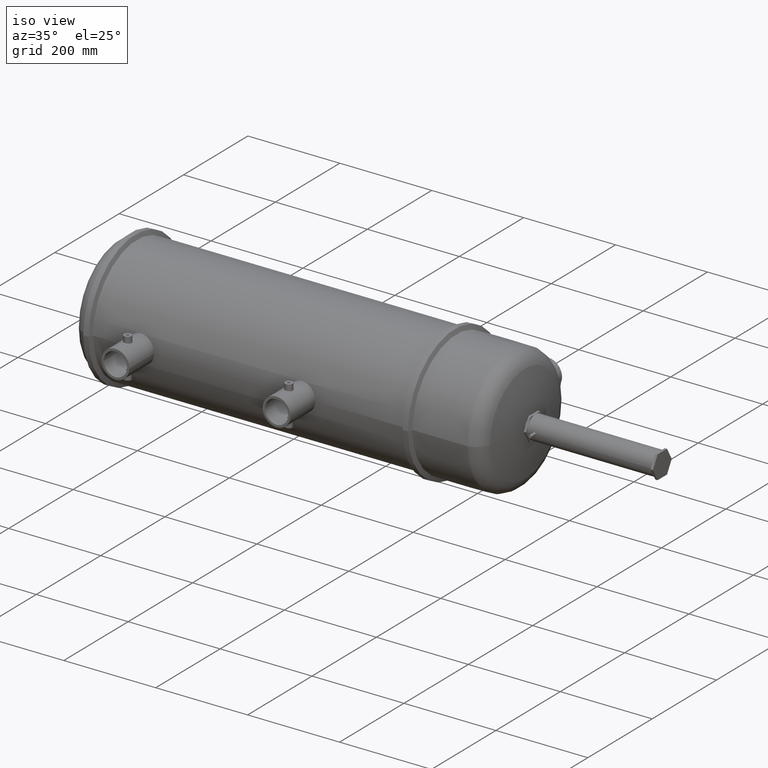
[diagram: clean part render]
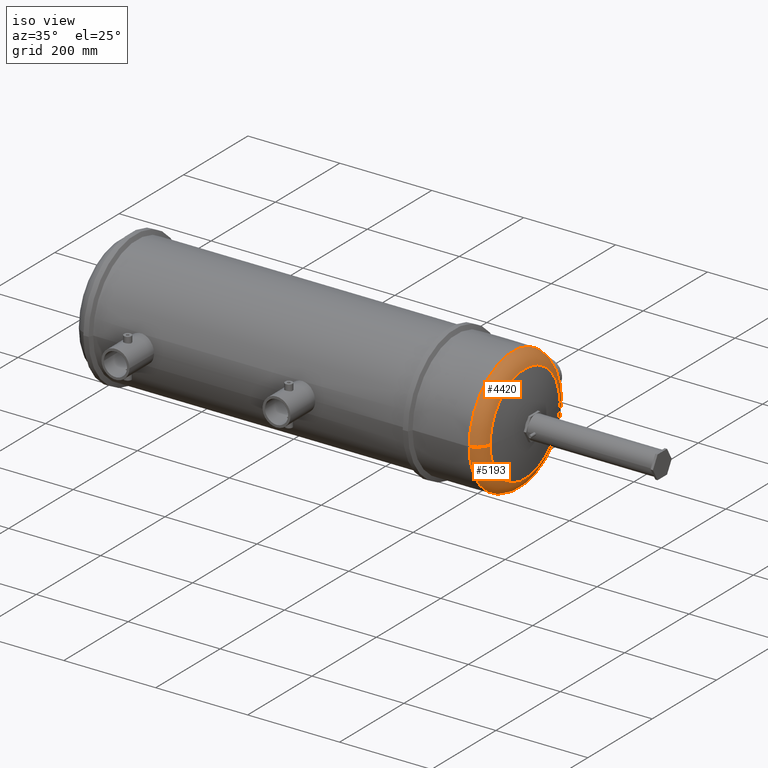
[diagram: same view with one multi-face feature highlighted, each face labeled with its STEP entity id]
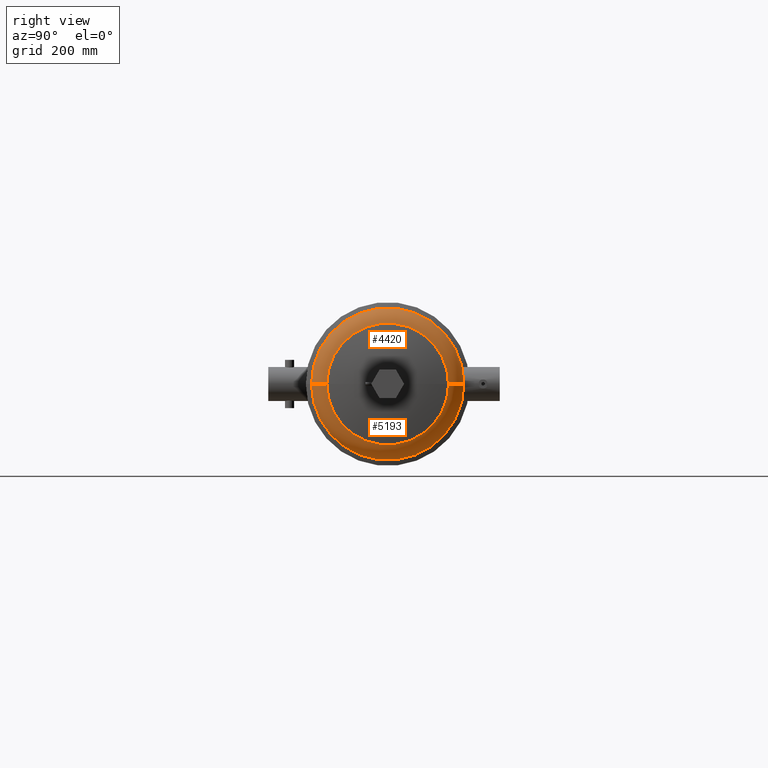
[diagram: same view with one multi-face feature highlighted, each face labeled with its STEP entity id]
A machine part, iso view. The highlighted faces form ONE feature: a constant-radius fillet chain: 2 tangent blend faces with common blend radius 36.1885 mm. The faces share edges in the B-rep.
A second angle (right view) of the same feature is appended — it is thin or edge-on in the first view.
Their STEP definitions:
[1] entity #5193 (Torus):
#386 = ORIENTED_EDGE ( 'NONE', *, *, #5635, .T. ) ;
#621 = CARTESIAN_POINT ( 'NONE',  ( 34.51215737964329100, 0.003374638380548222000, 0.0000000000000000000 ) ) ;
#673 = DIRECTION ( 'NONE',  ( 0.0000000000000000000, -0.0000000000000000000, -1.000000000000000000 ) ) ;
#1340 = FACE_OUTER_BOUND ( 'NONE', #2945, .T. ) ;
#1539 = DIRECTION ( 'NONE',  ( 0.0000000000000000000, -1.000000000000000000, 0.0000000000000000000 ) ) ;
#1694 = CIRCLE ( 'NONE', #3658, 1.424746040561524900 ) ;
#1752 = AXIS2_PLACEMENT_3D ( 'NONE', #2094, #4376, #5259 ) ;
#1851 = VERTEX_POINT ( 'NONE', #3456 ) ;
#2094 = CARTESIAN_POINT ( 'NONE',  ( 35.55526549689713500, 0.003374638380548246200, 0.0000000000000000000 ) ) ;
#2262 = CARTESIAN_POINT ( 'NONE',  ( 35.55526549689712800, 4.275103033478896600, 5.231358505884052500E-016 ) ) ;
#2321 = CARTESIAN_POINT ( 'NONE',  ( 34.51215737964329100, -5.345444288855457400, 0.0000000000000000000 ) ) ;
#2459 = ORIENTED_EDGE ( 'NONE', *, *, #2979, .T. ) ;
#2945 = EDGE_LOOP ( 'NONE', ( #4637, #2459, #386, #3238 ) ) ;
#2979 = EDGE_CURVE ( 'NONE', #4826, #1851, #3058, .T. ) ;
#2981 = CIRCLE ( 'NONE', #3009, 1.424746040561524900 ) ;
#3009 = AXIS2_PLACEMENT_3D ( 'NONE', #5850, #3142, #4081 ) ;
#3058 = CIRCLE ( 'NONE', #1752, 4.271728395098345600 ) ;
#3142 = DIRECTION ( 'NONE',  ( -1.380747427220608200E-036, -1.224646799147353200E-016, 1.000000000000000000 ) ) ;
#3238 = ORIENTED_EDGE ( 'NONE', *, *, #3636, .T. ) ;
#3386 = CARTESIAN_POINT ( 'NONE',  ( 34.16339746353055100, -3.964043622499467300, 0.0000000000000000000 ) ) ;
#3456 = CARTESIAN_POINT ( 'NONE',  ( 35.55526549689712800, -4.268353756717799800, 0.0000000000000000000 ) ) ;
#3636 = EDGE_CURVE ( 'NONE', #4489, #3660, #5463, .T. ) ;
#3658 = AXIS2_PLACEMENT_3D ( 'NONE', #3386, #673, #3870 ) ;
#3660 = VERTEX_POINT ( 'NONE', #3838 ) ;
#3838 = CARTESIAN_POINT ( 'NONE',  ( 34.51215737964329100, 5.352193565616555100, 6.550413978458354700E-016 ) ) ;
#3870 = DIRECTION ( 'NONE',  ( -1.000000000000000000, 0.0000000000000000000, 0.0000000000000000000 ) ) ;
#4039 = CARTESIAN_POINT ( 'NONE',  ( 34.16339746353055100, 0.003374638380548222000, 0.0000000000000000000 ) ) ;
#4081 = DIRECTION ( 'NONE',  ( 0.0000000000000000000, -1.000000000000000000, -1.224646799147352700E-016 ) ) ;
#4376 = DIRECTION ( 'NONE',  ( -1.000000000000000000, 1.127465836012422800E-020, -0.0000000000000000000 ) ) ;
#4489 = VERTEX_POINT ( 'NONE', #2321 ) ;
#4490 = DIRECTION ( 'NONE',  ( -1.127465836012422800E-020, -1.000000000000000000, 0.0000000000000000000 ) ) ;
#4586 = TOROIDAL_SURFACE ( 'NONE', #5785, 3.967418260880015300, 1.424746040561524900 ) ;
#4637 = ORIENTED_EDGE ( 'NONE', *, *, #4791, .F. ) ;
#4671 = DIRECTION ( 'NONE',  ( 1.000000000000000000, -1.127465836012422800E-020, 0.0000000000000000000 ) ) ;
#4791 = EDGE_CURVE ( 'NONE', #4826, #3660, #2981, .T. ) ;
#4826 = VERTEX_POINT ( 'NONE', #2262 ) ;
#5193 = ADVANCED_FACE ( 'NONE', ( #1340 ), #4586, .T. ) ;
#5259 = DIRECTION ( 'NONE',  ( 0.0000000000000000000, -1.000000000000000000, 0.0000000000000000000 ) ) ;
#5432 = DIRECTION ( 'NONE',  ( -1.000000000000000000, 1.127465836012422800E-020, -0.0000000000000000000 ) ) ;
#5463 = CIRCLE ( 'NONE', #5691, 5.348818927236005800 ) ;
#5635 = EDGE_CURVE ( 'NONE', #1851, #4489, #1694, .T. ) ;
#5691 = AXIS2_PLACEMENT_3D ( 'NONE', #621, #4671, #1539 ) ;
#5785 = AXIS2_PLACEMENT_3D ( 'NONE', #4039, #5432, #4490 ) ;
#5850 = CARTESIAN_POINT ( 'NONE',  ( 34.16339746353055100, 3.970792899260563700, 4.858686074065470000E-016 ) ) ;
[2] entity #4420 (Torus):
#284 = ORIENTED_EDGE ( 'NONE', *, *, #3805, .T. ) ;
#378 = DIRECTION ( 'NONE',  ( 0.0000000000000000000, -1.000000000000000000, 0.0000000000000000000 ) ) ;
#410 = AXIS2_PLACEMENT_3D ( 'NONE', #3076, #4876, #378 ) ;
#466 = DIRECTION ( 'NONE',  ( -1.000000000000000000, 1.127465836012422800E-020, -0.0000000000000000000 ) ) ;
#515 = CIRCLE ( 'NONE', #2048, 4.271728395098345600 ) ;
#517 = CIRCLE ( 'NONE', #410, 5.348818927236005800 ) ;
#673 = DIRECTION ( 'NONE',  ( 0.0000000000000000000, -0.0000000000000000000, -1.000000000000000000 ) ) ;
#836 = CARTESIAN_POINT ( 'NONE',  ( 35.55526549689713500, 0.003374638380548246200, 0.0000000000000000000 ) ) ;
#913 = ORIENTED_EDGE ( 'NONE', *, *, #3027, .T. ) ;
#1694 = CIRCLE ( 'NONE', #3658, 1.424746040561524900 ) ;
#1851 = VERTEX_POINT ( 'NONE', #3456 ) ;
#2048 = AXIS2_PLACEMENT_3D ( 'NONE', #836, #3998, #2631 ) ;
#2262 = CARTESIAN_POINT ( 'NONE',  ( 35.55526549689712800, 4.275103033478896600, 5.231358505884052500E-016 ) ) ;
#2321 = CARTESIAN_POINT ( 'NONE',  ( 34.51215737964329100, -5.345444288855457400, 0.0000000000000000000 ) ) ;
#2553 = EDGE_LOOP ( 'NONE', ( #913, #3159, #284, #2810 ) ) ;
#2631 = DIRECTION ( 'NONE',  ( 0.0000000000000000000, -1.000000000000000000, 0.0000000000000000000 ) ) ;
#2810 = ORIENTED_EDGE ( 'NONE', *, *, #5635, .F. ) ;
#2981 = CIRCLE ( 'NONE', #3009, 1.424746040561524900 ) ;
#3009 = AXIS2_PLACEMENT_3D ( 'NONE', #5850, #3142, #4081 ) ;
#3027 = EDGE_CURVE ( 'NONE', #1851, #4826, #515, .T. ) ;
#3076 = CARTESIAN_POINT ( 'NONE',  ( 34.51215737964329100, 0.003374638380548222000, 0.0000000000000000000 ) ) ;
#3142 = DIRECTION ( 'NONE',  ( -1.380747427220608200E-036, -1.224646799147353200E-016, 1.000000000000000000 ) ) ;
#3148 = CARTESIAN_POINT ( 'NONE',  ( 34.16339746353055100, 0.003374638380548222000, 0.0000000000000000000 ) ) ;
#3159 = ORIENTED_EDGE ( 'NONE', *, *, #4791, .T. ) ;
#3386 = CARTESIAN_POINT ( 'NONE',  ( 34.16339746353055100, -3.964043622499467300, 0.0000000000000000000 ) ) ;
#3456 = CARTESIAN_POINT ( 'NONE',  ( 35.55526549689712800, -4.268353756717799800, 0.0000000000000000000 ) ) ;
#3658 = AXIS2_PLACEMENT_3D ( 'NONE', #3386, #673, #3870 ) ;
#3660 = VERTEX_POINT ( 'NONE', #3838 ) ;
#3805 = EDGE_CURVE ( 'NONE', #3660, #4489, #517, .T. ) ;
#3838 = CARTESIAN_POINT ( 'NONE',  ( 34.51215737964329100, 5.352193565616555100, 6.550413978458354700E-016 ) ) ;
#3870 = DIRECTION ( 'NONE',  ( -1.000000000000000000, 0.0000000000000000000, 0.0000000000000000000 ) ) ;
#3901 = FACE_OUTER_BOUND ( 'NONE', #2553, .T. ) ;
#3998 = DIRECTION ( 'NONE',  ( -1.000000000000000000, 1.127465836012422800E-020, -0.0000000000000000000 ) ) ;
#4081 = DIRECTION ( 'NONE',  ( 0.0000000000000000000, -1.000000000000000000, -1.224646799147352700E-016 ) ) ;
#4107 = TOROIDAL_SURFACE ( 'NONE', #5201, 3.967418260880015300, 1.424746040561524900 ) ;
#4420 = ADVANCED_FACE ( 'NONE', ( #3901 ), #4107, .T. ) ;
#4489 = VERTEX_POINT ( 'NONE', #2321 ) ;
#4791 = EDGE_CURVE ( 'NONE', #4826, #3660, #2981, .T. ) ;
#4826 = VERTEX_POINT ( 'NONE', #2262 ) ;
#4876 = DIRECTION ( 'NONE',  ( 1.000000000000000000, -1.127465836012422800E-020, 0.0000000000000000000 ) ) ;
#4994 = DIRECTION ( 'NONE',  ( -1.127465836012422800E-020, -1.000000000000000000, 0.0000000000000000000 ) ) ;
#5201 = AXIS2_PLACEMENT_3D ( 'NONE', #3148, #466, #4994 ) ;
#5635 = EDGE_CURVE ( 'NONE', #1851, #4489, #1694, .T. ) ;
#5850 = CARTESIAN_POINT ( 'NONE',  ( 34.16339746353055100, 3.970792899260563700, 4.858686074065470000E-016 ) ) ;